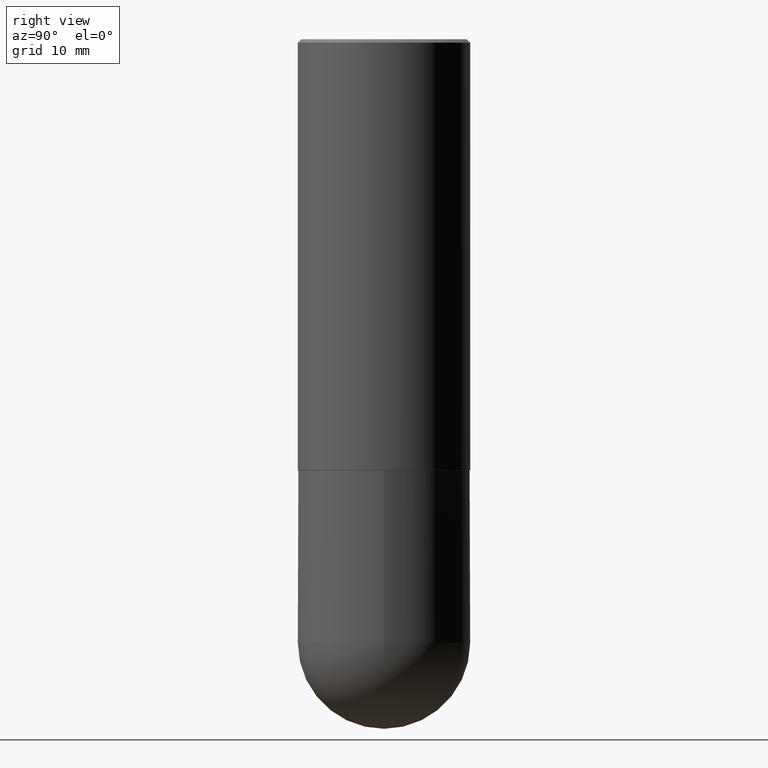
[diagram: clean part render]
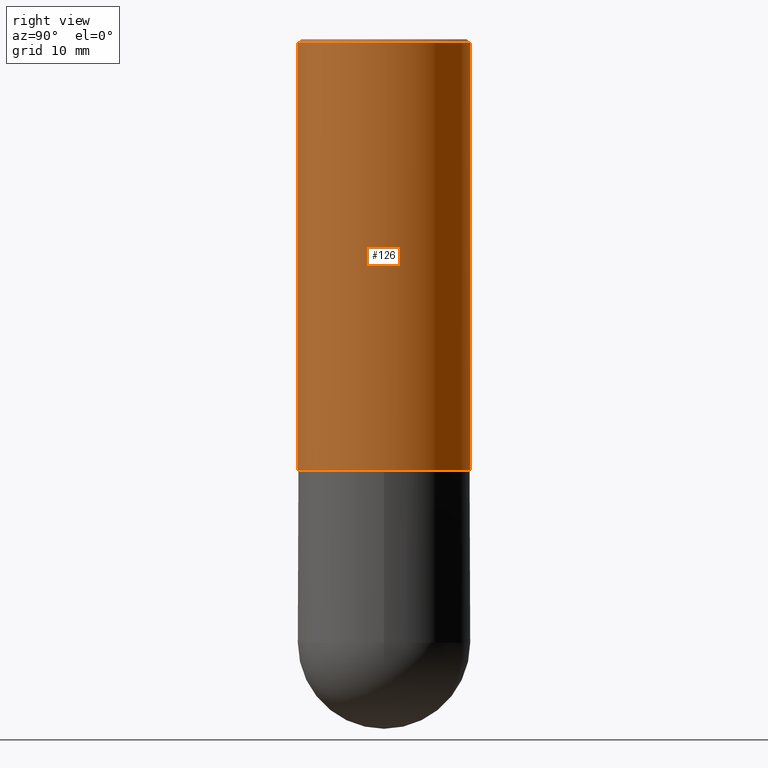
[diagram: same view with one face highlighted and labeled with its STEP entity id]
A machine part, right view. The second image highlights one B-rep face of the part: STEP entity #126.
In plain terms, the highlighted cylindrical surface (partial cylindrical patch) has radius 12.7 mm, axis along (-0, 0, 1).
Its self-contained STEP definition (entity closure, byte-faithful):
#27 = ORIENTED_EDGE ( 'NONE', *, *, #97, .T. ) ;
#31 = EDGE_CURVE ( 'NONE', #146, #317, #263, .T. ) ;
#33 = CARTESIAN_POINT ( 'NONE',  ( 3.552713678800533273E-15, 0.4999999999999916178, -2.499000000000001886 ) ) ;
#35 = DIRECTION ( 'NONE',  ( -6.982962677686265922E-15, -1.000000000000000000, 3.489755554178314733E-15 ) ) ;
#48 = ORIENTED_EDGE ( 'NONE', *, *, #72, .T. ) ;
#65 = CARTESIAN_POINT ( 'NONE',  ( 6.114238114023726435E-29, -8.720899129891609258E-15, -2.499000000000000110 ) ) ;
#72 = EDGE_CURVE ( 'NONE', #281, #352, #303, .T. ) ;
#80 = DIRECTION ( 'NONE',  ( -2.446673915175560132E-29, 3.489755554178315128E-15, 1.000000000000000000 ) ) ;
#90 = CYLINDRICAL_SURFACE ( 'NONE', #212, 0.5000000000000001110 ) ;
#91 = CARTESIAN_POINT ( 'NONE',  ( 3.491481338843133355E-15, 0.4999999999999999445, -0.02000000000000185310 ) ) ;
#97 = EDGE_CURVE ( 'NONE', #352, #317, #236, .T. ) ;
#117 = AXIS2_PLACEMENT_3D ( 'NONE', #65, #393, #197 ) ;
#126 = ADVANCED_FACE ( 'NONE', ( #383 ), #90, .T. ) ;
#129 = LINE ( 'NONE', #218, #406 ) ;
#146 = VERTEX_POINT ( 'NONE', #233 ) ;
#167 = CARTESIAN_POINT ( 'NONE',  ( 4.893347830351146574E-31, -6.979511108356666888E-17, -0.02000000000000010797 ) ) ;
#190 = ORIENTED_EDGE ( 'NONE', *, *, #31, .F. ) ;
#191 = DIRECTION ( 'NONE',  ( -2.446673915175560132E-29, 3.489755554178315128E-15, 1.000000000000000000 ) ) ;
#197 = DIRECTION ( 'NONE',  ( -6.982962677686266711E-15, -1.000000000000000000, 3.278217592397114284E-15 ) ) ;
#200 = EDGE_LOOP ( 'NONE', ( #48, #27, #190, #275 ) ) ;
#210 = EDGE_CURVE ( 'NONE', #281, #146, #129, .T. ) ;
#212 = AXIS2_PLACEMENT_3D ( 'NONE', #410, #289, #35 ) ;
#218 = CARTESIAN_POINT ( 'NONE',  ( -3.491481338843133750E-15, -0.5000000000000001110, 1.744877777089157761E-15 ) ) ;
#233 = CARTESIAN_POINT ( 'NONE',  ( -3.430248998885764992E-15, -0.5000000000000001110, -0.01999999999999835937 ) ) ;
#236 = LINE ( 'NONE', #376, #304 ) ;
#263 = CIRCLE ( 'NONE', #312, 0.5000000000000000000 ) ;
#266 = DIRECTION ( 'NONE',  ( -6.982962677686265922E-15, -1.000000000000000000, 3.491643216902136408E-15 ) ) ;
#275 = ORIENTED_EDGE ( 'NONE', *, *, #210, .F. ) ;
#281 = VERTEX_POINT ( 'NONE', #387 ) ;
#289 = DIRECTION ( 'NONE',  ( -2.446673915175560132E-29, 3.489755554178314733E-15, 1.000000000000000000 ) ) ;
#303 = CIRCLE ( 'NONE', #117, 0.5000000000000002220 ) ;
#304 = VECTOR ( 'NONE', #80, 39.37007874015748143 ) ;
#312 = AXIS2_PLACEMENT_3D ( 'NONE', #167, #395, #266 ) ;
#317 = VERTEX_POINT ( 'NONE', #91 ) ;
#352 = VERTEX_POINT ( 'NONE', #33 ) ;
#376 = CARTESIAN_POINT ( 'NONE',  ( 3.552713678800501718E-15, 0.5000000000000001110, -1.744877777089157761E-15 ) ) ;
#383 = FACE_OUTER_BOUND ( 'NONE', #200, .T. ) ;
#387 = CARTESIAN_POINT ( 'NONE',  ( -3.491481338843073796E-15, -0.5000000000000089928, -2.498999999999998778 ) ) ;
#393 = DIRECTION ( 'NONE',  ( -2.446673915175560132E-29, 3.489755554178314733E-15, 1.000000000000000000 ) ) ;
#395 = DIRECTION ( 'NONE',  ( -2.446673915175560132E-29, 3.489755554178314733E-15, 1.000000000000000000 ) ) ;
#406 = VECTOR ( 'NONE', #191, 39.37007874015748143 ) ;
#410 = CARTESIAN_POINT ( 'NONE',  ( 0.000000000000000000, 0.000000000000000000, 0.000000000000000000 ) ) ;